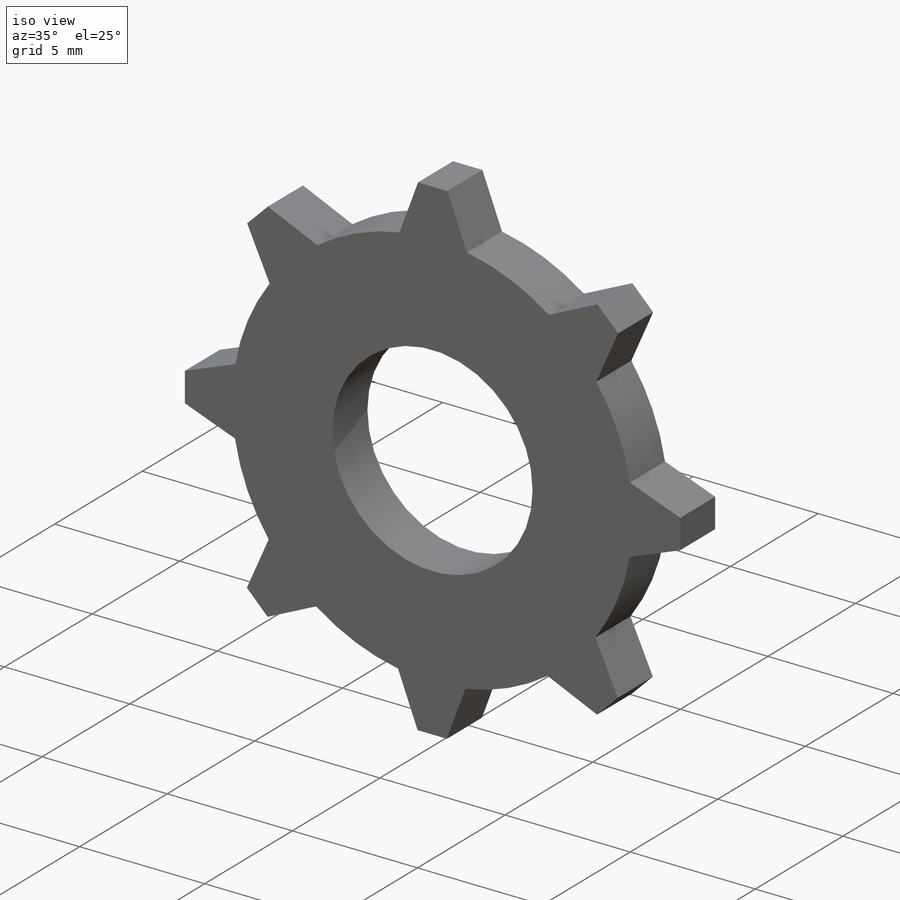
[diagram: iso view]
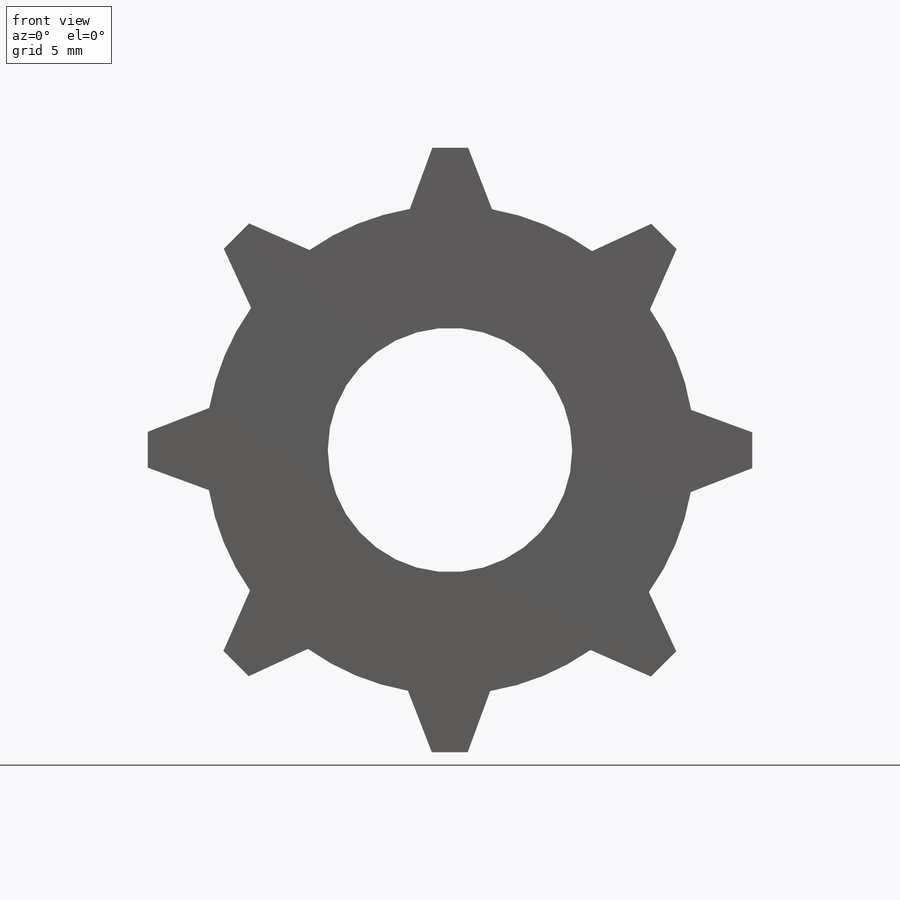
[diagram: front view]
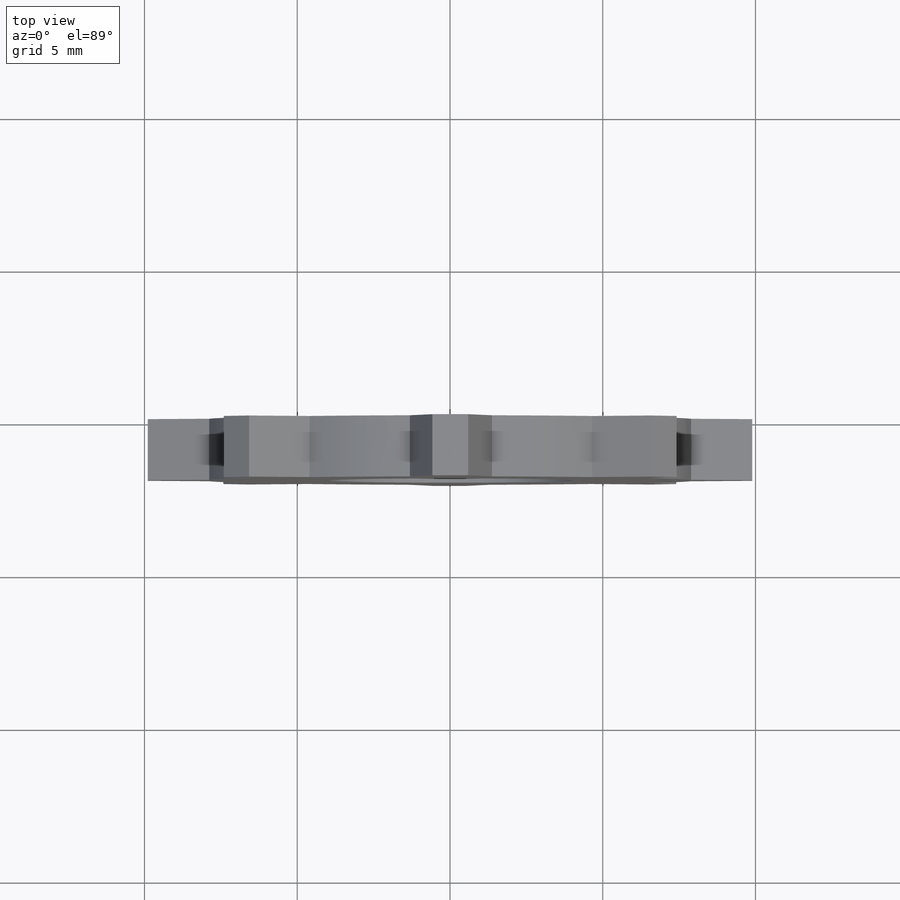
[diagram: top view]
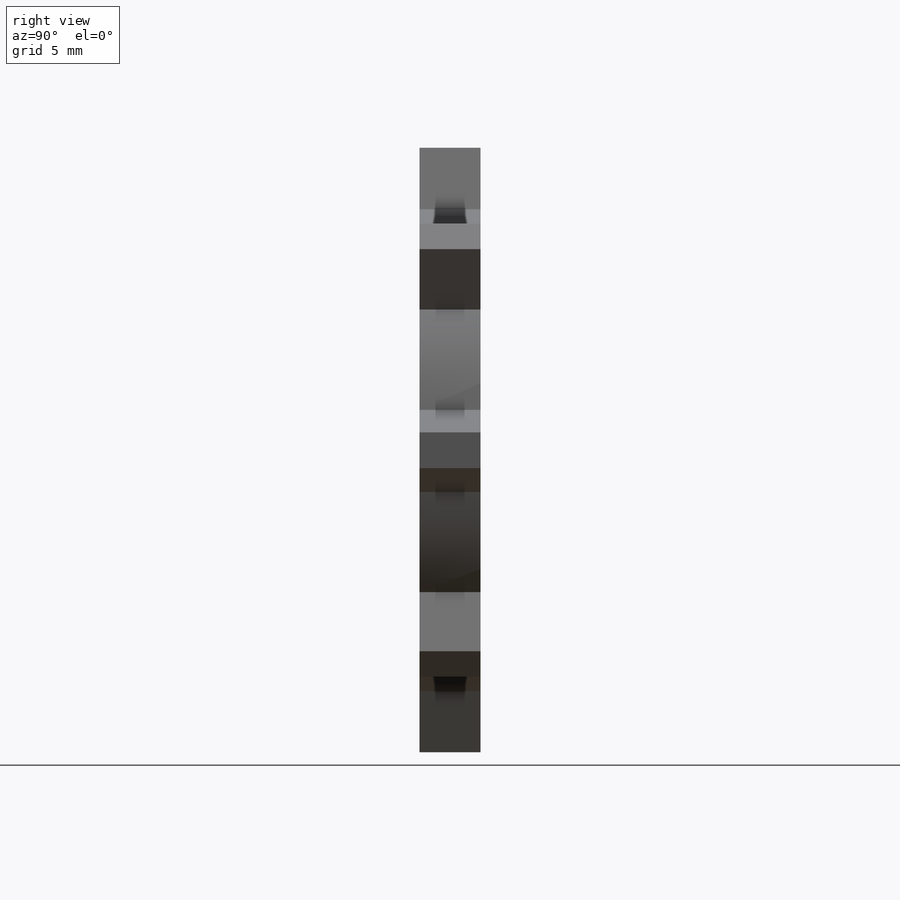
[diagram: right view]
SOLIDWORKS PART (.sldprt)
format: sldprt  version: not decoded by parser v0  size: 139,776 bytes
history: native  units: mm
features: plane x3, sketch x2, extrude x2, material x1, pattern_circular x1 (+8 scaffold rows collapsed)
feature tree (17):
  scaffold x8  (default folders/planes/origin — collapsed)
  material  "Material <sin especificar>"
  plane  "Alzado"
  plane  "Planta"
  plane  "Vista lateral"
  sketch  "Croquis1"  dims[D1=2.0mm]
  extrude  "Saliente-Extruir5"  Depth=2mm
  sketch  "Croquis5"  dims[D1=2.0mm D2=2.0mm]
  extrude  "Saliente-Extruir7"  Depth=2mm
  pattern_circular  "MatrizC5"  Count=8 Angle=360deg
decode coverage: 5 of 5 modeling features carry decoded parameters
note: suppression state not decoded; provenance and decode notes live in map.json
